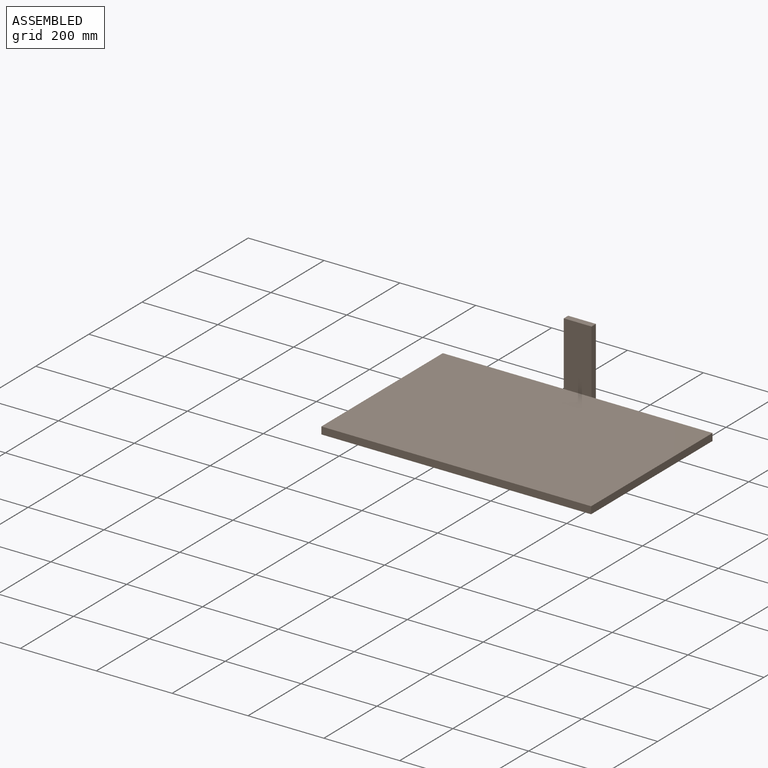
[diagram: assembled view]
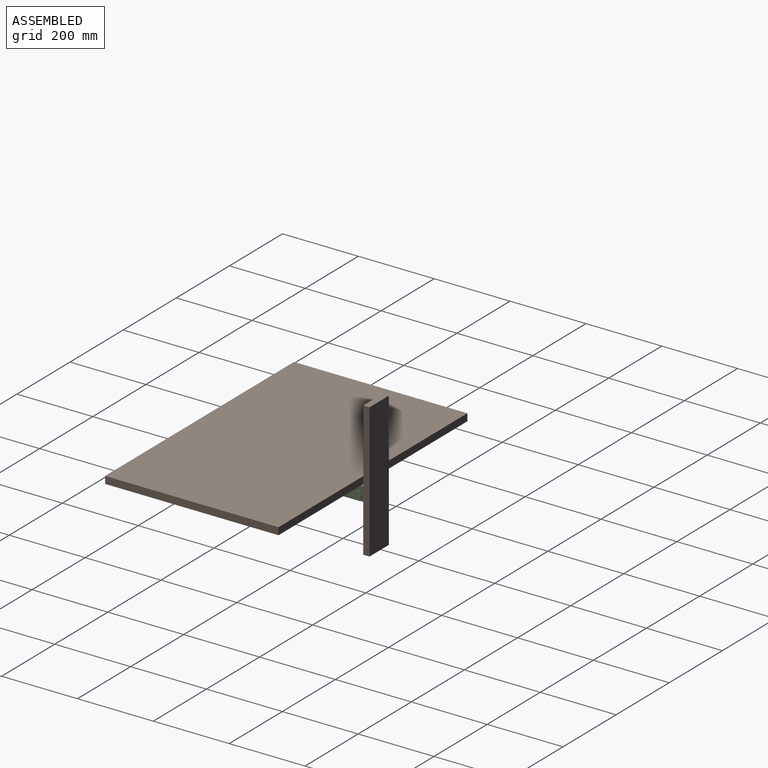
[diagram: assembled view, second angle]
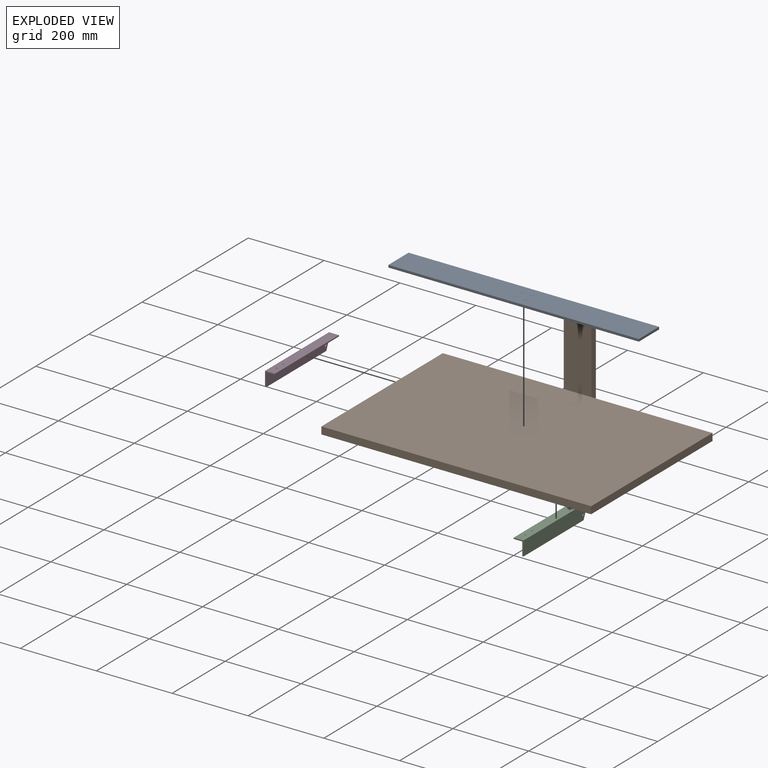
[diagram: exploded view]
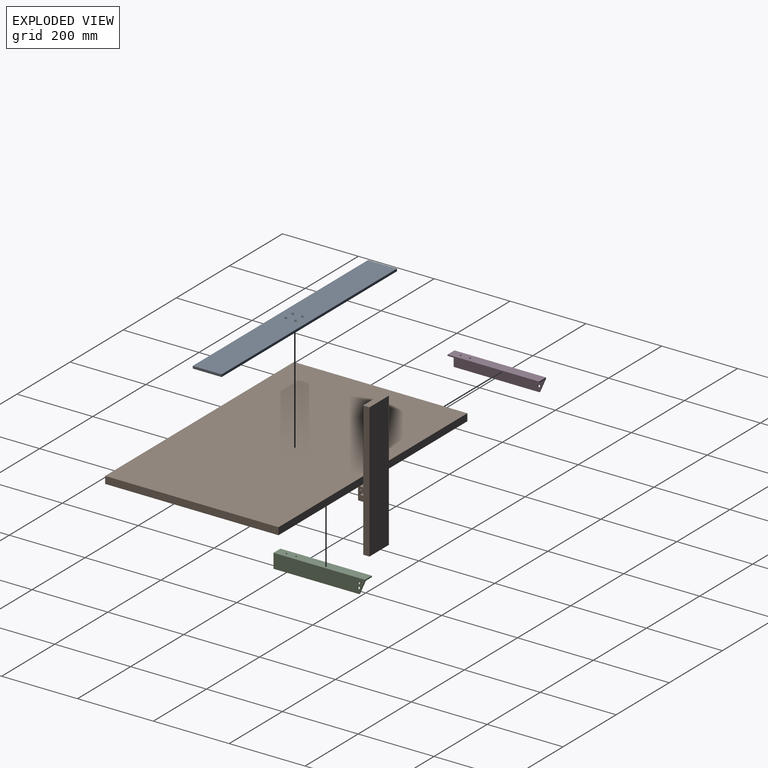
[diagram: exploded view, second angle]
ASSEMBLY  parts=4 mates=3
PART A: 14 faces, bbox 660.4x76.2x6.4 mm
  f0: plane 76.2x6.35mm, normal (1,0,0), area 483.9mm2, adj f1,f3,f4,f5
  f1: plane 660.4x6.35mm, normal (0,1,0), area 4193.5mm2, adj f0,f2,f4,f5
  f2: plane 76.2x6.35mm, normal (-1,0,0), area 483.9mm2, adj f1,f3,f4,f5
  f3: plane 660.4x6.35mm, normal (0,-1,0), area 4193.5mm2, adj f0,f2,f4,f5
  f4: plane 660.4x76.2mm, normal (0,0,1), area 49980.1mm2, adj f0,f1,f2,f3,f7,f9,f11,f13
  f5: plane 660.4x76.2mm, normal (0,0,-1), area 50240.6mm2, adj f0,f1,f2,f3,f6,f8,f10,f12
  f6: cylinder r=2.55mm len=5.11mm, axis (0,0,1), area 52.6mm2, adj f5,f7
  f7: cone r=2.55mm half-angle=41deg, axis (0,0,1), area 99.3mm2, adj f4,f6
  f8: cylinder r=2.55mm len=5.11mm, axis (0,0,1), area 52.6mm2, adj f5,f9
  f9: cone r=2.55mm half-angle=41deg, axis (0,0,1), area 99.3mm2, adj f4,f8
  f10: cylinder r=2.55mm len=5.11mm, axis (0,0,1), area 52.6mm2, adj f5,f11
  f11: cone r=2.55mm half-angle=41deg, axis (0,0,1), area 99.3mm2, adj f4,f10
  f12: cylinder r=2.55mm len=5.11mm, axis (0,0,1), area 52.6mm2, adj f5,f13
  f13: cone r=2.55mm half-angle=41deg, axis (0,0,1), area 99.3mm2, adj f4,f12
PART B: 26 faces, bbox 711.2x473.7x355.6 mm
  f0: plane 34.29x24.38mm, normal (-1,0,0), area 763.9mm2, adj f6,f16,f17,f18,f19,f20,f21,f22
  f1: plane 34.29x24.38mm, normal (1,0,0), area 763.9mm2, adj f6,f16,f17,f18,f19,f20,f21,f22
  f2: plane 168.28x73.15mm, normal (0,-1,0), area 12309.7mm2, adj f3,f5,f7,f10
  f3: plane 355.6x16.51mm, normal (1,0,0), area 5871mm2, adj f2,f4,f6,f7,f8,f15
  f4: plane 355.6x73.15mm, normal (0,1,0), area 26012.9mm2, adj f3,f5,f7,f8
  f5: plane 355.6x16.51mm, normal (-1,0,0), area 5871mm2, adj f2,f4,f6,f7,f8,f9
  f6: plane 168.28x73.15mm, normal (0,-1,0), area 10829mm2, adj f0,f1,f3,f5,f8,f12,f16,f17
  f7: plane 73.15x16.51mm, normal (0,0,1), area 1207.7mm2, adj f2,f3,f4,f5
  f8: plane 73.15x16.51mm, normal (0,0,-1), area 1207.7mm2, adj f3,f4,f5,f6
  f9: plane 319.02x19.05mm, normal (0,1,0), area 6077.4mm2, adj f5,f10,f11,f12
  f10: plane 711.2x457.2mm, normal (0,0,1), area 325160.6mm2, adj f2,f9,f11,f13,f14,f15
  f11: plane 457.2x19.05mm, normal (-1,0,0), area 8709.7mm2, adj f9,f10,f12,f14
  f12: plane 711.2x457.2mm, normal (0,0,-1), area 325160.6mm2, adj f6,f9,f11,f13,f14,f15
  f13: plane 457.2x19.05mm, normal (1,0,0), area 8709.7mm2, adj f10,f12,f14,f15
  f14: plane 711.2x19.05mm, normal (0,-1,0), area 13548.4mm2, adj f10,f11,f12,f13
  f15: plane 319.02x19.05mm, normal (0,1,0), area 6077.4mm2, adj f3,f10,f12,f13
  f16: plane 43.18x22.78mm, normal (0,0,-1), area 983.8mm2, adj f0,f1,f6,f19
  f17: plane 43.18x22.78mm, normal (0,0,1), area 983.8mm2, adj f0,f1,f6,f20
  f18: plane 43.18x31.09mm, normal (0,-1,0), area 1342.4mm2, adj f0,f1,f19,f20
  f19: cylinder r=1.6mm len=43.18mm, axis (-1,0,0), area 108.5mm2, adj f0,f1,f16,f18
  f20: cylinder r=1.6mm len=43.18mm, axis (1,0,0), area 108.5mm2, adj f0,f1,f17,f18
  f21: plane 43.18x4.95mm, normal (0,0,-1), area 213.9mm2, adj f0,f1,f22,f24
  f22: cylinder r=2.67mm len=43.18mm, axis (1,0,0), area 361.8mm2, adj f0,f1,f21,f23
  f23: plane 43.18x4.95mm, normal (0,0,1), area 213.9mm2, adj f0,f1,f22,f24
  f24: cylinder r=2.67mm len=43.18mm, axis (1,0,0), area 361.8mm2, adj f0,f1,f21,f23
  f25: cylinder r=2.67mm len=43.18mm, axis (1,0,0), area 723.6mm2, adj f0,f1
PART C: 16 faces, bbox 26x241.3x38.1 mm
  f0: plane 241.3x22.86mm, normal (0,0,-1), area 5490.5mm2, adj f1,f2,f5,f13,f14,f15
  f1: plane 38.1x26.04mm, normal (0,-1,0), area 193.5mm2, adj f0,f3,f4,f5,f6,f15
  f2: plane 26.04x3.18mm, normal (0,1,0), area 82.7mm2, adj f0,f3,f6,f12,f15
  f3: plane 241.3x26.04mm, normal (0,0,1), area 6256.6mm2, adj f1,f2,f6,f13,f14,f15
  f4: plane 226.26x3.18mm, normal (0,0,-1), area 718.4mm2, adj f1,f5,f6,f12
  f5: plane 241.3x34.93mm, normal (-1,0,0), area 8110.6mm2, adj f0,f1,f4,f7,f8,f9,f10,f11
  f6: plane 241.3x38.1mm, normal (1,0,0), area 8876.7mm2, adj f1,f2,f3,f4,f7,f8,f9,f10
  f7: cylinder r=2.67mm len=5.33mm, axis (1,0,0), area 53.2mm2, adj f5,f6
  f8: cylinder r=2.67mm len=5.12mm, axis (1,0,0), area 26.6mm2, adj f5,f6,f9,f11
  f9: plane 3.18x1.63mm, normal (0,-0.92,0.4), area 5.6mm2, adj f5,f6,f8,f10
  f10: cylinder r=2.67mm len=5.12mm, axis (1,0,0), area 26.6mm2, adj f5,f6,f9,f11
  f11: plane 3.18x1.64mm, normal (0,0.92,-0.4), area 5.7mm2, adj f5,f6,f8,f10
  f12: plane 34.93x15.04mm, normal (0,0.92,-0.4), area 120.7mm2, adj f2,f4,f5,f6
  f13: cylinder r=2.02mm len=4.04mm, axis (0,0,1), area 40.3mm2, adj f0,f3
  f14: cylinder r=2.02mm len=4.04mm, axis (0,0,1), area 40.3mm2, adj f0,f3
  f15: plane 241.3x3.18mm, normal (-1,0,0), area 766.1mm2, adj f0,f1,f2,f3
PART D: 16 faces, bbox 26x241.3x38.1 mm
  f0: plane 226.26x3.18mm, normal (0,0,-1), area 718.4mm2, adj f1,f4,f12,f13
  f1: plane 241.3x34.93mm, normal (1,0,0), area 8110.6mm2, adj f0,f5,f7,f8,f9,f10,f11,f12
  f2: plane 241.3x3.18mm, normal (1,0,0), area 766.1mm2, adj f3,f5,f6,f13
  f3: plane 241.3x26.04mm, normal (0,0,1), area 6256.6mm2, adj f2,f4,f6,f13,f14,f15
  f4: plane 241.3x38.1mm, normal (-1,0,0), area 8876.7mm2, adj f0,f3,f6,f7,f8,f9,f10,f11
  f5: plane 241.3x22.86mm, normal (0,0,-1), area 5490.5mm2, adj f1,f2,f6,f13,f14,f15
  f6: plane 26.04x3.18mm, normal (0,1,0), area 82.7mm2, adj f2,f3,f4,f5,f12
  f7: cylinder r=2.67mm len=5.33mm, axis (-1,0,0), area 53.2mm2, adj f1,f4
  f8: cylinder r=2.67mm len=5.12mm, axis (-1,0,0), area 26.6mm2, adj f1,f4,f9,f11
  f9: plane 3.18x1.63mm, normal (0,-0.92,0.4), area 5.6mm2, adj f1,f4,f8,f10
  f10: cylinder r=2.67mm len=5.12mm, axis (-1,0,0), area 26.6mm2, adj f1,f4,f9,f11
  f11: plane 3.18x1.64mm, normal (0,0.92,-0.4), area 5.7mm2, adj f1,f4,f8,f10
  f12: plane 34.93x15.04mm, normal (0,0.92,-0.4), area 120.7mm2, adj f0,f1,f4,f6
  f13: plane 38.1x26.04mm, normal (0,-1,0), area 193.5mm2, adj f0,f1,f2,f3,f4,f5
  f14: cylinder r=2.02mm len=4.04mm, axis (0,0,1), area 40.3mm2, adj f3,f5
  f15: cylinder r=2.02mm len=4.04mm, axis (0,0,1), area 40.3mm2, adj f3,f5
PLACE A t=(11.82,-178.67,11.44)mm
PLACE B t=(10.55,34.57,31.12)mm
PLACE C t=(11.82,-77.07,11.44)mm
PLACE D t=(11.82,-77.07,11.44)mm
MATE fastened A.f8 <-> C.f14  axis (0,0,-1) through (24.84,-165.97,11.44)mm
MATE fastened D.f7 <-> B.f25  axis (1,0,0) through (-11.04,8.53,-1.01)mm
MATE fastened C.f15 <-> D.f2  axis (-1,0,0) through (11.82,24.53,11.44)mm
